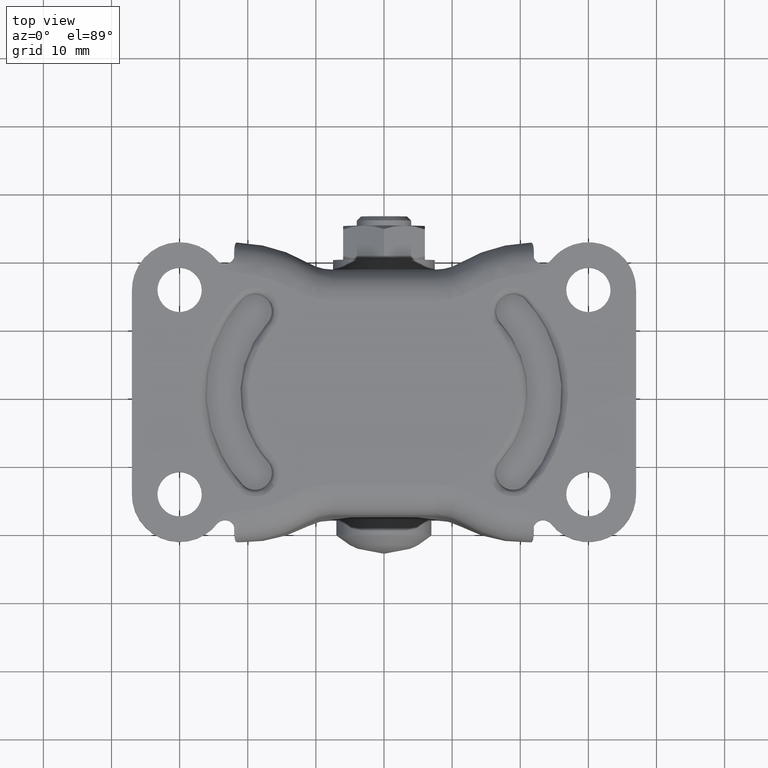
[diagram: clean part render]
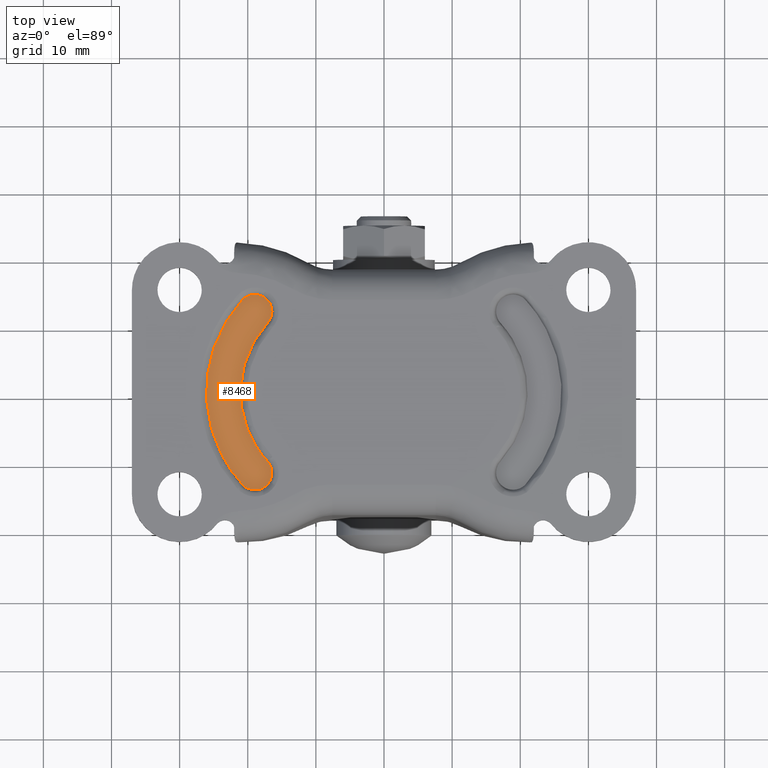
[diagram: same view with one face highlighted and labeled with its STEP entity id]
A machine part, top view. The second image highlights one B-rep face of the part: STEP entity #8468.
In plain terms, the highlighted face is a freeform B-spline surface patch.
Its self-contained STEP definition (entity closure, byte-faithful):
#8174=CARTESIAN_POINT('',(-17.106082851280998,10.149494566041920,-1.0));
#8175=VERTEX_POINT('',#8174);
#8189=CARTESIAN_POINT('',(-17.106082859570151,-10.149494557021800,-1.0));
#8190=VERTEX_POINT('',#8189);
#8191=CARTESIAN_POINT('',(-17.106082851280998,10.149494566041920,-1.0));
#8192=CARTESIAN_POINT('',(-26.432840854806201,8.318676E-009,-1.0));
#8193=CARTESIAN_POINT('',(-17.106082859570151,-10.149494557021800,-1.0));
#8201=(BOUNDED_CURVE()B_SPLINE_CURVE(2,(#8191,#8192,#8193),.UNSPECIFIED.,.F.,.U.)CURVE()GEOMETRIC_REPRESENTATION_ITEM()QUASI_UNIFORM_CURVE()RATIONAL_B_SPLINE_CURVE((1.0,0.736320459763850,1.0))REPRESENTATION_ITEM(''));
#8202=EDGE_CURVE('',#8175,#8190,#8201,.T.);
#8258=CARTESIAN_POINT('',(-20.787685140429652,-13.532659442978400,-1.0));
#8259=VERTEX_POINT('',#8258);
#8291=CARTESIAN_POINT('',(-20.787685140429669,-13.532659442978410,-1.0));
#8292=CARTESIAN_POINT('',(-19.811049561619694,-14.595446476930109,-1.0));
#8293=CARTESIAN_POINT('',(-18.402331201999822,-14.281048772416799,-1.0));
#8294=CARTESIAN_POINT('',(-16.993612842379953,-13.966651067903490,-1.0));
#8295=CARTESIAN_POINT('',(-16.561530061570060,-12.589466329438491,-1.0));
#8296=CARTESIAN_POINT('',(-16.129447280760168,-11.212281590973484,-1.0));
#8297=CARTESIAN_POINT('',(-17.106082859570140,-10.149494557021789,-1.0));
#8305=(BOUNDED_CURVE()B_SPLINE_CURVE(2,(#8291,#8292,#8293,#8294,#8295,#8296,#8297),.UNSPECIFIED.,.F.,.U.)B_SPLINE_CURVE_WITH_KNOTS((3,2,2,3),(0.0,0.333333333333333,0.666666666666667,1.0),.UNSPECIFIED.)CURVE()GEOMETRIC_REPRESENTATION_ITEM()RATIONAL_B_SPLINE_CURVE((1.0,0.866025403784439,1.0,0.866025403784439,1.0,0.866025403784439,1.0))REPRESENTATION_ITEM(''));
#8306=EDGE_CURVE('',#8259,#8190,#8305,.T.);
#8336=CARTESIAN_POINT('',(-20.787685189750999,13.532659471663999,-1.0));
#8337=VERTEX_POINT('',#8336);
#8351=CARTESIAN_POINT('',(-17.106082851281009,10.149494566041930,-1.0));
#8352=CARTESIAN_POINT('',(-15.414500417323037,11.990295714760812,-1.0));
#8353=CARTESIAN_POINT('',(-17.255301566041901,13.681878148718800,-1.0));
#8354=CARTESIAN_POINT('',(-19.096102714760786,15.373460582676787,-1.0));
#8355=CARTESIAN_POINT('',(-20.787685189750999,13.532659471663999,-1.0));
#8363=(BOUNDED_CURVE()B_SPLINE_CURVE(2,(#8351,#8352,#8353,#8354,#8355),.UNSPECIFIED.,.F.,.U.)B_SPLINE_CURVE_WITH_KNOTS((3,2,3),(0.0,0.500000000000000,1.0),.UNSPECIFIED.)CURVE()GEOMETRIC_REPRESENTATION_ITEM()RATIONAL_B_SPLINE_CURVE((1.0,0.707106781186549,1.0,0.707106781186549,1.0))REPRESENTATION_ITEM(''));
#8364=EDGE_CURVE('',#8175,#8337,#8363,.T.);
#8403=CARTESIAN_POINT('',(-20.787685189750992,13.532659471664010,-1.0));
#8404=CARTESIAN_POINT('',(-33.223362490911867,-8.318820E-009,-1.0));
#8405=CARTESIAN_POINT('',(-20.787685140429652,-13.532659442978400,-1.0));
#8413=(BOUNDED_CURVE()B_SPLINE_CURVE(2,(#8403,#8404,#8405),.UNSPECIFIED.,.F.,.U.)CURVE()GEOMETRIC_REPRESENTATION_ITEM()QUASI_UNIFORM_CURVE()RATIONAL_B_SPLINE_CURVE((1.0,0.736320459280320,1.0))REPRESENTATION_ITEM(''));
#8414=EDGE_CURVE('',#8337,#8259,#8413,.T.);
#8457=CARTESIAN_POINT('',(-26.541507913342379,15.773608821982720,-1.0));
#8458=CARTESIAN_POINT('',(-15.966779321978400,15.773608821982720,-1.0));
#8459=CARTESIAN_POINT('',(-26.541507913342379,-15.773607862074090,-1.0));
#8460=CARTESIAN_POINT('',(-15.966779321978400,-15.773607862074090,-1.0));
#8461=B_SPLINE_SURFACE_WITH_KNOTS('',1,1,((#8457,#8459),(#8458,#8460)),.UNSPECIFIED.,.F.,.F.,.U.,(2,2),(2,2),(0.0,10.574728591363980),(0.0,31.547216684056810),.UNSPECIFIED.);
#8462=ORIENTED_EDGE('',*,*,#8202,.F.);
#8463=ORIENTED_EDGE('',*,*,#8364,.T.);
#8464=ORIENTED_EDGE('',*,*,#8414,.T.);
#8465=ORIENTED_EDGE('',*,*,#8306,.T.);
#8466=EDGE_LOOP('',(#8462,#8463,#8464,#8465));
#8467=FACE_OUTER_BOUND('',#8466,.T.);
#8468=ADVANCED_FACE('',(#8467),#8461,.F.);